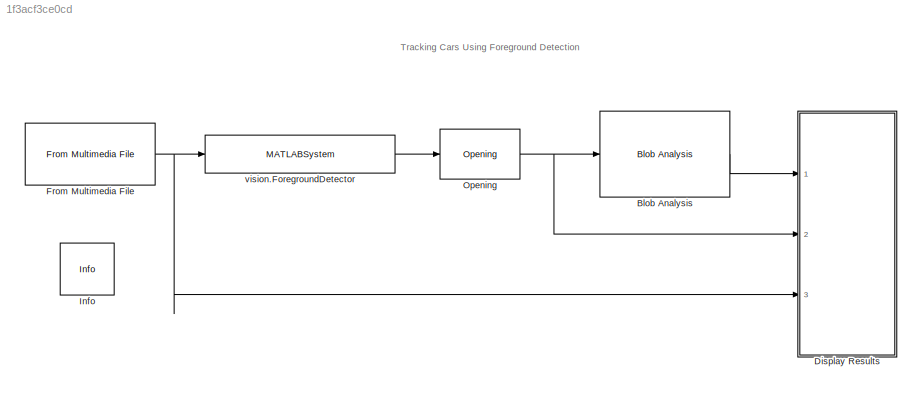
MODEL slx_1f3acf3ce0cd
KIND model
CONFIG AbsTol = auto
CONFIG FixedStep = auto
CONFIG MaxStep = auto
CONFIG MinStep = auto
CONFIG RelTol = 1e-3
CONFIG SampleTimeConstraint = Unconstrained
CONFIG Solver = FixedStepDiscrete
CONFIG SolverMode = Auto
CONFIG SolverName = FixedStepDiscrete
CONFIG StartTime = 0.0
CONFIG StopTime = inf
BLOCK [Reference] Blob Analysis  REF=visionstatistics/Blob Analysis
  Ports = [1, 1]
  SourceBlock = visionstatistics/Blob Analysis
  SourceType = Blob Analysis
  Tag = vipblks_row_conv
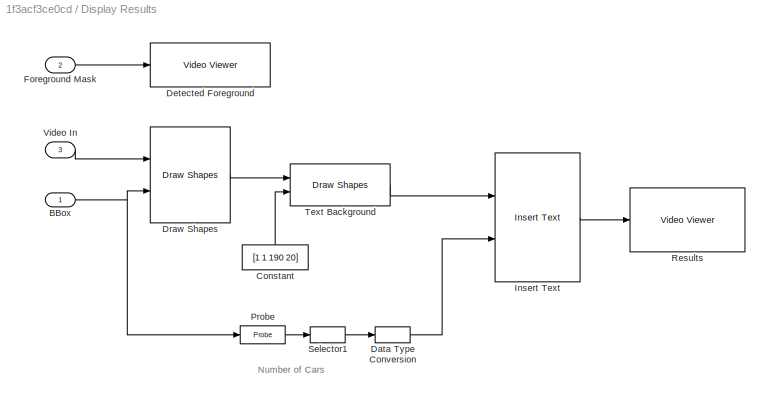
BLOCK [SubSystem] Display Results
  Ports = [3]
  RTWMemSecDataConstants = Default
  RTWMemSecDataInternal = Default
  RTWMemSecDataParameters = Default
  RTWMemSecFuncExecute = Default
  RTWMemSecFuncInitTerm = Default
  RequestExecContextInheritance = off
  Variant = off
BLOCK [Inport] Display Results/BBox
  IconDisplay = Port number
BLOCK [Constant] Display Results/Constant
  Value = [1 1 190 20]
BLOCK [DataTypeConversion] Display Results/Data Type Conversion
  OutDataTypeStr = uint8
  RndMeth = Floor
  SaturateOnIntegerOverflow = off
BLOCK [Reference] Display Results/Detected Foreground  REF=visionsinks/Video Viewer
  Ports = [1]
  SourceBlock = visionsinks/Video Viewer
  SourceType = Video Viewer
  UserDataPersistent = on
BLOCK [Reference] Display Results/Draw Shapes  REF=visiontextngfix/Draw Shapes
  Ports = [2, 1]
  SourceBlock = visiontextngfix/Draw Shapes
  SourceType = Draw Shapes
BLOCK [Inport] Display Results/Foreground Mask
  IconDisplay = Port number
  Port = 2
BLOCK [Reference] Display Results/Insert Text  REF=visiontextngfix/Insert Text
  Ports = [2, 1]
  SourceBlock = visiontextngfix/Insert Text
  SourceType = Insert Text
BLOCK [Probe] Display Results/Probe
  Ports = [1, 1]
  ProbeComplexSignal = off
  ProbeSampleTime = off
  ProbeSignalDimensions = on
  ProbeWidth = off
  ProbeWidthDataType = uint8
BLOCK [Reference] Display Results/Results  REF=visionsinks/Video Viewer
  Ports = [1]
  SourceBlock = visionsinks/Video Viewer
  SourceType = Video Viewer
  UserDataPersistent = on
BLOCK [Selector] Display Results/Selector1
  IndexOptions = Index vector (dialog),Index vector (dialog)
  Indices = 1,1
  InputPortWidth = 3
  NumberOfDimensions = 2
  OutputSizes = 99,1
  Ports = [1, 1]
BLOCK [Reference] Display Results/Text Background  REF=visiontextngfix/Draw Shapes
  Ports = [2, 1]
  SourceBlock = visiontextngfix/Draw Shapes
  SourceType = Draw Shapes
BLOCK [Inport] Display Results/Video In
  IconDisplay = Port number
  Port = 3
BLOCK [Reference] From Multimedia File  REF=dspvision/From Multimedia File
  Ports = [0, 1]
  SourceBlock = dspvision/From Multimedia File
  SourceType = From Multimedia File
BLOCK [Reference] Info  REF=vipmisc/Info
  Ports = []
  SourceBlock = vipmisc/Info
  SourceType = Info
BLOCK [Reference] Opening  REF=visionmorphops/Opening
  Ports = [1, 1]
  SourceBlock = visionmorphops/Opening
  SourceType = Opening
BLOCK [MATLABSystem] vision.ForegroundDetector
  AdaptLearningRate = on
  InitialVariance = Auto
  LearningRate = 0.005
  MaskDisplay = disp('ForegroundDetector');\nport_label('output',1,'fgMask');
  MaskType = vision.ForegroundDetector
  MinimumBackgroundRatio = 0.7
  NumGaussians = 3
  NumTrainingFrames = 50
  Ports = [1, 1]
  SimulateUsing = Interpreted execution
  System = vision.ForegroundDetector
ANNOTATION (root): Tracking Cars Using Foreground Detection
ANNOTATION Display Results: Number of Cars
LINE Blob Analysis:1 -> Display Results:1
NET Display Results/BBox:1 -> Display Results/Draw Shapes:2, Display Results/Probe:1
LINE Display Results/Constant:1 -> Display Results/Text Background:2
LINE Display Results/Data Type Conversion:1 -> Display Results/Insert Text:2
LINE Display Results/Draw Shapes:1 -> Display Results/Text Background:1
LINE Display Results/Foreground Mask:1 -> Display Results/Detected Foreground:1
LINE Display Results/Insert Text:1 -> Display Results/Results:1
LINE Display Results/Probe:1 -> Display Results/Selector1:1
LINE Display Results/Selector1:1 -> Display Results/Data Type Conversion:1
LINE Display Results/Text Background:1 -> Display Results/Insert Text:1
LINE Display Results/Video In:1 -> Display Results/Draw Shapes:1
NET From Multimedia File:1 -> Display Results:3, vision.ForegroundDetector:1
NET Opening:1 -> Blob Analysis:1, Display Results:2
LINE vision.ForegroundDetector:1 -> Opening:1
note: NET lines group one-source signal fan-out (src -> all destinations, sorted); 1:1 wires keep LINE
